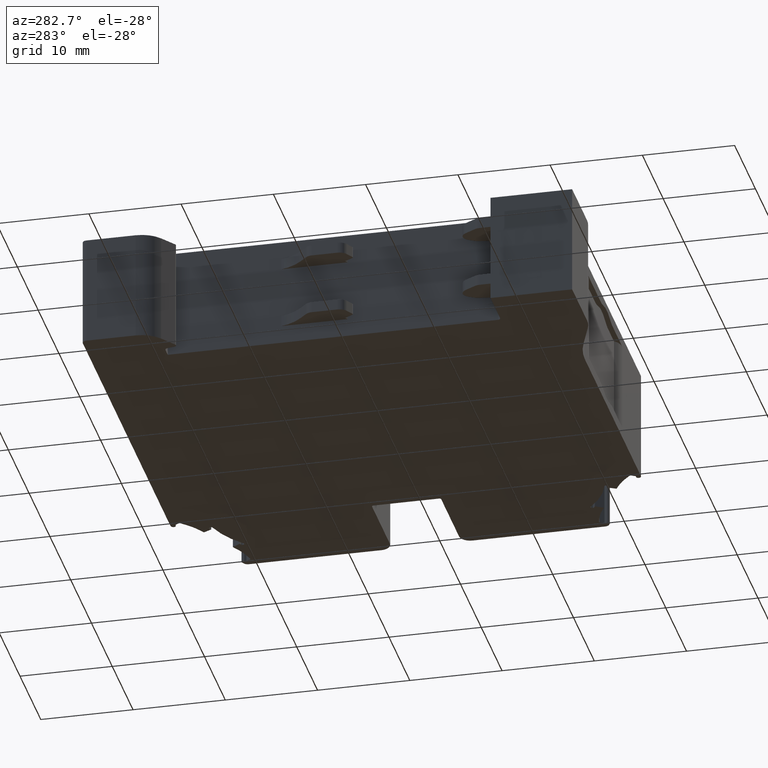
[diagram: clean part render]
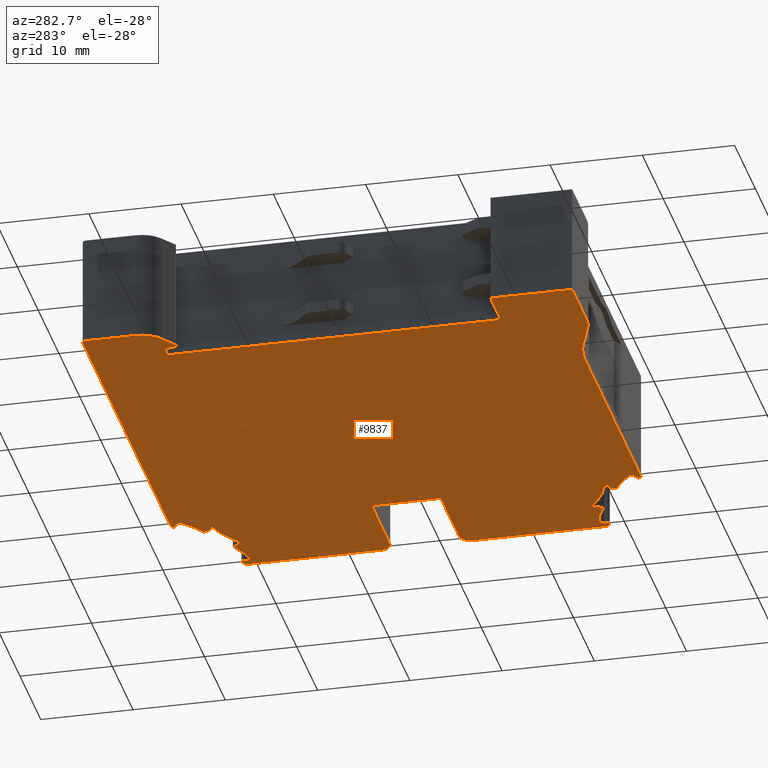
[diagram: same view with one face highlighted and labeled with its STEP entity id]
A machine part, auxiliary view. The second image highlights one B-rep face of the part: STEP entity #9837.
In plain terms, the highlighted planar face has unit normal (-0, 0, -1).
Its self-contained STEP definition (entity closure, byte-faithful):
#20 = DIRECTION ( 'NONE',  ( -0.8660281029035741263, -0.4999953249593804827, 0.000000000000000000 ) ) ;
#25 = DIRECTION ( 'NONE',  ( -0.1737351373877148442, -0.9847924157084435581, -1.851064442343834390E-14 ) ) ;
#33 = ORIENTED_EDGE ( 'NONE', *, *, #13090, .T. ) ;
#67 = CARTESIAN_POINT ( 'NONE',  ( 561.8719053672530208, -31.68192348020464166, -63.46407265014235577 ) ) ;
#80 = AXIS2_PLACEMENT_3D ( 'NONE', #10157, #6100, #16772 ) ;
#120 = VERTEX_POINT ( 'NONE', #1875 ) ;
#126 = ORIENTED_EDGE ( 'NONE', *, *, #8556, .T. ) ;
#148 = VECTOR ( 'NONE', #5958, 1000.000000000000227 ) ;
#168 = VERTEX_POINT ( 'NONE', #10503 ) ;
#180 = ORIENTED_EDGE ( 'NONE', *, *, #17756, .T. ) ;
#187 = VECTOR ( 'NONE', #13740, 1000.000000000000114 ) ;
#188 = DIRECTION ( 'NONE',  ( 0.000000000000000000, 1.000000000000000000, 0.000000000000000000 ) ) ;
#190 = ORIENTED_EDGE ( 'NONE', *, *, #10200, .T. ) ;
#198 = DIRECTION ( 'NONE',  ( -0.4999966573996220132, -0.8660273336270657429, 0.000000000000000000 ) ) ;
#217 = DIRECTION ( 'NONE',  ( 0.000000000000000000, 1.000000000000000000, 0.000000000000000000 ) ) ;
#221 = ORIENTED_EDGE ( 'NONE', *, *, #15176, .T. ) ;
#236 = VERTEX_POINT ( 'NONE', #12322 ) ;
#253 = CARTESIAN_POINT ( 'NONE',  ( 569.4671547242824090, -56.89747454266193216, -63.46407265014251919 ) ) ;
#281 = VERTEX_POINT ( 'NONE', #5015 ) ;
#285 = AXIS2_PLACEMENT_3D ( 'NONE', #11188, #16524, #16711 ) ;
#346 = EDGE_CURVE ( 'NONE', #17013, #9349, #1768, .T. ) ;
#389 = EDGE_CURVE ( 'NONE', #1082, #11814, #16365, .T. ) ;
#395 = CARTESIAN_POINT ( 'NONE',  ( 561.8719053672539303, -74.61305929558598393, -63.46407265014266130 ) ) ;
#423 = ORIENTED_EDGE ( 'NONE', *, *, #7732, .T. ) ;
#473 = ORIENTED_EDGE ( 'NONE', *, *, #9314, .T. ) ;
#483 = DIRECTION ( 'NONE',  ( 0.9999999999996291855, -8.611274224165934097E-07, 0.000000000000000000 ) ) ;
#511 = DIRECTION ( 'NONE',  ( -1.706662860027260251E-28, 6.982966722218760189E-15, -1.000000000000000000 ) ) ;
#518 = VECTOR ( 'NONE', #4364, 1000.000000000000114 ) ;
#639 = AXIS2_PLACEMENT_3D ( 'NONE', #12952, #14134, #7352 ) ;
#642 = VERTEX_POINT ( 'NONE', #15012 ) ;
#645 = VERTEX_POINT ( 'NONE', #7689 ) ;
#654 = VERTEX_POINT ( 'NONE', #6696 ) ;
#655 = EDGE_CURVE ( 'NONE', #3689, #3760, #10484, .T. ) ;
#659 = LINE ( 'NONE', #1844, #1272 ) ;
#716 = CARTESIAN_POINT ( 'NONE',  ( 566.0763336953314138, -71.92203973951025375, -63.46407265014263288 ) ) ;
#720 = CIRCLE ( 'NONE', #10783, 0.1500016548255100890 ) ;
#723 = LINE ( 'NONE', #6207, #14634 ) ;
#728 = CARTESIAN_POINT ( 'NONE',  ( 522.7674822807854298, -68.86420423064505769, -63.46407265014261867 ) ) ;
#741 = CARTESIAN_POINT ( 'NONE',  ( 560.3702414055205736, -78.64749090218452920, -63.46407265014268262 ) ) ;
#749 = CIRCLE ( 'NONE', #10813, 0.1499999932816631354 ) ;
#753 = AXIS2_PLACEMENT_3D ( 'NONE', #13647, #2743, #14002 ) ;
#759 = ORIENTED_EDGE ( 'NONE', *, *, #2971, .T. ) ;
#772 = DIRECTION ( 'NONE',  ( 1.706662860027260251E-28, -6.982966722218760189E-15, 1.000000000000000000 ) ) ;
#794 = VERTEX_POINT ( 'NONE', #4366 ) ;
#797 = VERTEX_POINT ( 'NONE', #8399 ) ;
#807 = VERTEX_POINT ( 'NONE', #16458 ) ;
#942 = CIRCLE ( 'NONE', #13310, 0.1499999932799700453 ) ;
#950 = VECTOR ( 'NONE', #6058, 999.9999999999998863 ) ;
#983 = VERTEX_POINT ( 'NONE', #17329 ) ;
#1015 = DIRECTION ( 'NONE',  ( 1.706662860027260251E-28, -6.982966722218760189E-15, 1.000000000000000000 ) ) ;
#1034 = LINE ( 'NONE', #14639, #9095 ) ;
#1043 = CIRCLE ( 'NONE', #753, 0.3122954085417600778 ) ;
#1048 = EDGE_CURVE ( 'NONE', #807, #14400, #5246, .T. ) ;
#1082 = VERTEX_POINT ( 'NONE', #1200 ) ;
#1089 = CARTESIAN_POINT ( 'NONE',  ( 562.1399904691000984, -30.49717210884261576, -63.46407265014234156 ) ) ;
#1113 = VECTOR ( 'NONE', #1732, 1000.000000000000000 ) ;
#1115 = DIRECTION ( 'NONE',  ( -0.8660242946938587760, 0.5000019209963140199, 0.000000000000000000 ) ) ;
#1118 = DIRECTION ( 'NONE',  ( 0.000000000000000000, 1.000000000000000000, 0.000000000000000000 ) ) ;
#1127 = VECTOR ( 'NONE', #5473, 1000.000000000000114 ) ;
#1151 = EDGE_CURVE ( 'NONE', #6265, #4979, #7489, .T. ) ;
#1159 = CARTESIAN_POINT ( 'NONE',  ( 569.8231645414397235, -72.72857196454502571, -63.46407265014264709 ) ) ;
#1166 = ORIENTED_EDGE ( 'NONE', *, *, #13320, .T. ) ;
#1189 = CARTESIAN_POINT ( 'NONE',  ( 522.7645257303951212, -68.86420423064505769, -63.46407265014261867 ) ) ;
#1200 = CARTESIAN_POINT ( 'NONE',  ( 561.9469082760608671, -31.55202135682349507, -63.46407265014235577 ) ) ;
#1210 = VECTOR ( 'NONE', #8599, 1000.000000000000114 ) ;
#1215 = CARTESIAN_POINT ( 'NONE',  ( 569.4671547242824090, -58.09747452346395136, -63.46407265014253340 ) ) ;
#1242 = CARTESIAN_POINT ( 'NONE',  ( 565.9862520434948010, -72.41078206804908746, -63.46407265014263288 ) ) ;
#1262 = EDGE_CURVE ( 'NONE', #9577, #168, #3439, .T. ) ;
#1272 = VECTOR ( 'NONE', #17081, 1000.000000000000000 ) ;
#1284 = AXIS2_PLACEMENT_3D ( 'NONE', #5305, #2782, #13509 ) ;
#1327 = AXIS2_PLACEMENT_3D ( 'NONE', #7451, #2068, #3514 ) ;
#1330 = VECTOR ( 'NONE', #12914, 1000.000000000000000 ) ;
#1344 = DIRECTION ( 'NONE',  ( 0.000000000000000000, 1.000000000000000000, 9.252195644141615147E-15 ) ) ;
#1345 = EDGE_CURVE ( 'NONE', #9161, #7465, #3345, .T. ) ;
#1371 = LINE ( 'NONE', #11179, #10250 ) ;
#1379 = VECTOR ( 'NONE', #1115, 1000.000000000000227 ) ;
#1384 = CARTESIAN_POINT ( 'NONE',  ( 561.7813948412482432, -31.91127693538050991, -63.46407265014235577 ) ) ;
#1439 = VERTEX_POINT ( 'NONE', #4038 ) ;
#1447 = ORIENTED_EDGE ( 'NONE', *, *, #7241, .T. ) ;
#1494 = EDGE_CURVE ( 'NONE', #642, #16756, #14947, .T. ) ;
#1507 = ORIENTED_EDGE ( 'NONE', *, *, #15130, .T. ) ;
#1513 = EDGE_CURVE ( 'NONE', #17212, #6682, #15297, .T. ) ;
#1530 = VERTEX_POINT ( 'NONE', #12592 ) ;
#1538 = ORIENTED_EDGE ( 'NONE', *, *, #15936, .T. ) ;
#1542 = VERTEX_POINT ( 'NONE', #253 ) ;
#1545 = AXIS2_PLACEMENT_3D ( 'NONE', #13903, #1559, #217 ) ;
#1546 = CARTESIAN_POINT ( 'NONE',  ( 566.2004923147610498, -72.28711497087449800, -63.46407265014263288 ) ) ;
#1559 = DIRECTION ( 'NONE',  ( -1.706662860027260251E-28, 6.982966722218760189E-15, -1.000000000000000000 ) ) ;
#1571 = CARTESIAN_POINT ( 'NONE',  ( 566.2062373498042689, -34.29794329986066970, -63.46407265014236998 ) ) ;
#1576 = CIRCLE ( 'NONE', #11634, 0.1499999932796300395 ) ;
#1660 = EDGE_CURVE ( 'NONE', #797, #15938, #12290, .T. ) ;
#1686 = AXIS2_PLACEMENT_3D ( 'NONE', #4739, #14289, #2037 ) ;
#1691 = CARTESIAN_POINT ( 'NONE',  ( 520.6839575659437287, -37.10685479651044716, -63.46407265014239130 ) ) ;
#1714 = CARTESIAN_POINT ( 'NONE',  ( 570.1671547108427376, -33.80367188685711710, -63.46407265014236998 ) ) ;
#1720 = EDGE_CURVE ( 'NONE', #1738, #4123, #8824, .T. ) ;
#1726 = VERTEX_POINT ( 'NONE', #17189 ) ;
#1732 = DIRECTION ( 'NONE',  ( -3.362296792049601850E-14, 1.000000000000000000, 7.144880683105404721E-15 ) ) ;
#1734 = CARTESIAN_POINT ( 'NONE',  ( 569.5046952913492078, -34.24573484975796589, -63.46407265014236998 ) ) ;
#1738 = VERTEX_POINT ( 'NONE', #4913 ) ;
#1764 = DIRECTION ( 'NONE',  ( 0.000000000000000000, 1.000000000000000000, 0.000000000000000000 ) ) ;
#1768 = LINE ( 'NONE', #3037, #17789 ) ;
#1769 = VERTEX_POINT ( 'NONE', #14461 ) ;
#1803 = CARTESIAN_POINT ( 'NONE',  ( 565.9862520434944599, -33.88420070774110116, -63.46407265014236998 ) ) ;
#1804 = EDGE_CURVE ( 'NONE', #6538, #1823, #12305, .T. ) ;
#1809 = DIRECTION ( 'NONE',  ( 0.000000000000000000, 1.000000000000000000, 0.000000000000000000 ) ) ;
#1823 = VERTEX_POINT ( 'NONE', #4020 ) ;
#1844 = CARTESIAN_POINT ( 'NONE',  ( 530.0855075410613608, -79.24441281374745927, -63.46407265014268262 ) ) ;
#1875 = CARTESIAN_POINT ( 'NONE',  ( 560.0658436432375993, -28.62726330374027484, -63.46407265014232735 ) ) ;
#1878 = DIRECTION ( 'NONE',  ( -1.706662860027260251E-28, 6.982966722218760189E-15, -1.000000000000000000 ) ) ;
#1911 = VECTOR ( 'NONE', #8394, 1000.000000000000114 ) ;
#1929 = LINE ( 'NONE', #7398, #950 ) ;
#1947 = DIRECTION ( 'NONE',  ( -1.706662860027260251E-28, 6.982966722218760189E-15, -1.000000000000000000 ) ) ;
#1957 = DIRECTION ( 'NONE',  ( 1.706662860027260251E-28, -6.982966722218760189E-15, 1.000000000000000000 ) ) ;
#1994 = DIRECTION ( 'NONE',  ( 0.8660281029088533478, -0.4999953249502364083, 0.000000000000000000 ) ) ;
#2022 = CARTESIAN_POINT ( 'NONE',  ( 570.6671547050843856, -58.09747452346395136, -63.46407265014253340 ) ) ;
#2025 = LINE ( 'NONE', #4983, #6460 ) ;
#2029 = CARTESIAN_POINT ( 'NONE',  ( 560.1957451522437168, -77.59271916353799270, -63.46407265014267551 ) ) ;
#2035 = FACE_OUTER_BOUND ( 'NONE', #8401, .T. ) ;
#2037 = DIRECTION ( 'NONE',  ( 0.000000000000000000, 1.000000000000000000, 0.000000000000000000 ) ) ;
#2040 = CARTESIAN_POINT ( 'NONE',  ( 522.7674822807842929, -35.84442360775773295, -63.46407265014238419 ) ) ;
#2068 = DIRECTION ( 'NONE',  ( 1.706662860027260251E-28, -6.982966722218760189E-15, 1.000000000000000000 ) ) ;
#2076 = DIRECTION ( 'NONE',  ( -1.000000000000000000, -5.567252192573311734E-14, 0.000000000000000000 ) ) ;
#2090 = DIRECTION ( 'NONE',  ( 1.706662860027260251E-28, -6.982966722218760189E-15, 1.000000000000000000 ) ) ;
#2105 = DIRECTION ( 'NONE',  ( -2.313955077234213448E-14, -1.000000000000000000, -6.749035641933122293E-15 ) ) ;
#2121 = CARTESIAN_POINT ( 'NONE',  ( 520.8560396413064382, -36.86110734822754864, -63.46407265014239130 ) ) ;
#2129 = VECTOR ( 'NONE', #9706, 1000.000000000000114 ) ;
#2147 = AXIS2_PLACEMENT_3D ( 'NONE', #13012, #3039, #15569 ) ;
#2169 = CARTESIAN_POINT ( 'NONE',  ( 570.1646566828833329, -33.22488120459399141, -63.46407265014236998 ) ) ;
#2180 = CARTESIAN_POINT ( 'NONE',  ( 517.7935084635490739, -80.79465791827048804, -63.46407265014269683 ) ) ;
#2206 = CARTESIAN_POINT ( 'NONE',  ( 570.1646566828832192, -73.07010157119663063, -63.46407265014264709 ) ) ;
#2253 = VECTOR ( 'NONE', #10298, 1000.000000000000000 ) ;
#2259 = CARTESIAN_POINT ( 'NONE',  ( 570.4171523704379752, -33.37065784039067751, -63.46407265014236998 ) ) ;
#2269 = VERTEX_POINT ( 'NONE', #17600 ) ;
#2387 = EDGE_CURVE ( 'NONE', #17340, #645, #5738, .T. ) ;
#2418 = DIRECTION ( 'NONE',  ( 0.5000206307942519635, 0.8660134922621692821, 0.000000000000000000 ) ) ;
#2419 = EDGE_CURVE ( 'NONE', #12702, #9666, #9128, .T. ) ;
#2531 = VECTOR ( 'NONE', #9316, 1000.000000000000000 ) ;
#2556 = CARTESIAN_POINT ( 'NONE',  ( 570.6671547050843856, -58.09747452346395136, -63.46407265014253340 ) ) ;
#2609 = EDGE_CURVE ( 'NONE', #4126, #1542, #8737, .T. ) ;
#2725 = DIRECTION ( 'NONE',  ( 1.706662860027260251E-28, -6.982966722218760189E-15, 1.000000000000000000 ) ) ;
#2743 = DIRECTION ( 'NONE',  ( 1.706662860027260251E-28, -6.982966722218760189E-15, 1.000000000000000000 ) ) ;
#2758 = CARTESIAN_POINT ( 'NONE',  ( 569.8231645414397235, -72.72857196454502571, -63.46407265014264709 ) ) ;
#2782 = DIRECTION ( 'NONE',  ( -1.706662860027260251E-28, 6.982966722218760189E-15, -1.000000000000000000 ) ) ;
#2797 = CARTESIAN_POINT ( 'NONE',  ( 560.6430337476881505, -78.56734460236029349, -63.46407265014268262 ) ) ;
#2798 = ORIENTED_EDGE ( 'NONE', *, *, #9933, .T. ) ;
#2875 = DIRECTION ( 'NONE',  ( 0.000000000000000000, 1.000000000000000000, 0.000000000000000000 ) ) ;
#2895 = VERTEX_POINT ( 'NONE', #16425 ) ;
#2926 = VECTOR ( 'NONE', #2105, 1000.000000000000000 ) ;
#2934 = VERTEX_POINT ( 'NONE', #2797 ) ;
#2938 = DIRECTION ( 'NONE',  ( 1.706662860027260251E-28, -6.982966722218760189E-15, 1.000000000000000000 ) ) ;
#2947 = DIRECTION ( 'NONE',  ( 1.706662860027260251E-28, -6.982966722218760189E-15, 1.000000000000000000 ) ) ;
#2971 = EDGE_CURVE ( 'NONE', #4484, #15395, #4673, .T. ) ;
#2982 = ORIENTED_EDGE ( 'NONE', *, *, #16546, .T. ) ;
#3015 = CIRCLE ( 'NONE', #9898, 9.999999811856202570 ) ;
#3037 = CARTESIAN_POINT ( 'NONE',  ( 567.0224943807828595, -72.97889453388137326, -63.46407265014264709 ) ) ;
#3039 = DIRECTION ( 'NONE',  ( -1.706662860027260475E-28, 6.982966722218760189E-15, -1.000000000000000000 ) ) ;
#3077 = CARTESIAN_POINT ( 'NONE',  ( 552.0431360607091165, -27.64748849852061596, -63.46407265014232735 ) ) ;
#3085 = CARTESIAN_POINT ( 'NONE',  ( 570.0396578521248330, -72.85359454630064135, -63.46407265014264709 ) ) ;
#3163 = CARTESIAN_POINT ( 'NONE',  ( 533.4540194484608264, -78.65045327963552779, -63.46407265014268262 ) ) ;
#3176 = EDGE_CURVE ( 'NONE', #6185, #3315, #9077, .T. ) ;
#3181 = ORIENTED_EDGE ( 'NONE', *, *, #17000, .T. ) ;
#3226 = EDGE_CURVE ( 'NONE', #17175, #281, #10128, .T. ) ;
#3275 = DIRECTION ( 'NONE',  ( -1.706662860027260251E-28, 6.982966722218760189E-15, -1.000000000000000000 ) ) ;
#3315 = VERTEX_POINT ( 'NONE', #4822 ) ;
#3345 = LINE ( 'NONE', #4522, #17808 ) ;
#3346 = LINE ( 'NONE', #17234, #6379 ) ;
#3369 = CARTESIAN_POINT ( 'NONE',  ( 560.3702414055205736, -78.14749090794406072, -63.46407265014267551 ) ) ;
#3374 = ORIENTED_EDGE ( 'NONE', *, *, #15114, .T. ) ;
#3390 = DIRECTION ( 'NONE',  ( 0.000000000000000000, 1.000000000000000000, 0.000000000000000000 ) ) ;
#3400 = CARTESIAN_POINT ( 'NONE',  ( 560.5866906129449490, -76.98969937433706434, -63.46407265014267551 ) ) ;
#3403 = CARTESIAN_POINT ( 'NONE',  ( 566.2554074486438367, -34.21277780639475452, -63.46407265014236998 ) ) ;
#3437 = CARTESIAN_POINT ( 'NONE',  ( 560.3702414055196641, -28.14749186784664303, -63.46407265014232735 ) ) ;
#3439 = LINE ( 'NONE', #14074, #8290 ) ;
#3465 = VERTEX_POINT ( 'NONE', #14928 ) ;
#3471 = DIRECTION ( 'NONE',  ( -0.9659156753051337807, -0.2588569261190966087, 0.000000000000000000 ) ) ;
#3514 = DIRECTION ( 'NONE',  ( 0.000000000000000000, 1.000000000000000000, 7.401487648237133248E-15 ) ) ;
#3547 = LINE ( 'NONE', #15631, #2253 ) ;
#3558 = EDGE_CURVE ( 'NONE', #7436, #120, #15196, .T. ) ;
#3566 = CARTESIAN_POINT ( 'NONE',  ( 560.6671548970647336, -49.59750822544972948, -63.46407265014247656 ) ) ;
#3637 = CIRCLE ( 'NONE', #13411, 0.1499999932796300395 ) ;
#3689 = VERTEX_POINT ( 'NONE', #11554 ) ;
#3694 = EDGE_CURVE ( 'NONE', #5636, #6622, #3547, .T. ) ;
#3717 = EDGE_CURVE ( 'NONE', #1530, #7486, #8273, .T. ) ;
#3751 = CARTESIAN_POINT ( 'NONE',  ( 517.7964640139779249, -74.63093544139645985, -63.46407265014266130 ) ) ;
#3760 = VERTEX_POINT ( 'NONE', #5346 ) ;
#3761 = EDGE_CURVE ( 'NONE', #4177, #4126, #14617, .T. ) ;
#3804 = VERTEX_POINT ( 'NONE', #3907 ) ;
#3907 = CARTESIAN_POINT ( 'NONE',  ( 560.3159145193496897, -78.10085493497095399, -63.46407265014267551 ) ) ;
#3918 = ORIENTED_EDGE ( 'NONE', *, *, #11022, .T. ) ;
#3942 = EDGE_CURVE ( 'NONE', #5030, #12072, #15912, .T. ) ;
#3976 = EDGE_CURVE ( 'NONE', #14692, #12146, #6679, .T. ) ;
#4020 = CARTESIAN_POINT ( 'NONE',  ( 517.7964640139779249, -74.63093544139645985, -63.46407265014266130 ) ) ;
#4038 = CARTESIAN_POINT ( 'NONE',  ( 562.1399904696373824, -75.79781066709244897, -63.46407265014266130 ) ) ;
#4039 = CARTESIAN_POINT ( 'NONE',  ( 560.6202390651146743, -27.71447782137997606, -63.46407265014232735 ) ) ;
#4051 = ORIENTED_EDGE ( 'NONE', *, *, #4758, .T. ) ;
#4085 = ORIENTED_EDGE ( 'NONE', *, *, #6056, .T. ) ;
#4105 = VERTEX_POINT ( 'NONE', #13224 ) ;
#4109 = EDGE_CURVE ( 'NONE', #6080, #6538, #15774, .T. ) ;
#4123 = VERTEX_POINT ( 'NONE', #6192 ) ;
#4126 = VERTEX_POINT ( 'NONE', #10602 ) ;
#4132 = EDGE_CURVE ( 'NONE', #7486, #1769, #6725, .T. ) ;
#4149 = VECTOR ( 'NONE', #16481, 1000.000000000000227 ) ;
#4159 = DIRECTION ( 'NONE',  ( 0.000000000000000000, 1.000000000000000000, 6.938894034458003939E-15 ) ) ;
#4177 = VERTEX_POINT ( 'NONE', #7997 ) ;
#4216 = ORIENTED_EDGE ( 'NONE', *, *, #3717, .T. ) ;
#4230 = VECTOR ( 'NONE', #7368, 1000.000000000000000 ) ;
#4231 = DIRECTION ( 'NONE',  ( -1.706662860027260251E-28, 6.982966722218760189E-15, -1.000000000000000000 ) ) ;
#4261 = CIRCLE ( 'NONE', #4545, 0.1499981612288481259 ) ;
#4269 = LINE ( 'NONE', #12553, #4426 ) ;
#4314 = ORIENTED_EDGE ( 'NONE', *, *, #2419, .T. ) ;
#4339 = ORIENTED_EDGE ( 'NONE', *, *, #389, .T. ) ;
#4341 = DIRECTION ( 'NONE',  ( -1.706662860027260251E-28, 6.982966722218760189E-15, -1.000000000000000000 ) ) ;
#4364 = DIRECTION ( 'NONE',  ( 0.7071459822521642957, -0.7070675779475549261, -1.974543855718506533E-14 ) ) ;
#4366 = CARTESIAN_POINT ( 'NONE',  ( 568.8313790241303423, -72.22969077795335124, -63.46407265014263288 ) ) ;
#4373 = VERTEX_POINT ( 'NONE', #12501 ) ;
#4412 = ORIENTED_EDGE ( 'NONE', *, *, #6369, .T. ) ;
#4417 = EDGE_CURVE ( 'NONE', #1823, #6832, #7783, .T. ) ;
#4426 = VECTOR ( 'NONE', #8304, 1000.000000000000000 ) ;
#4432 = VECTOR ( 'NONE', #10915, 999.9999999999998863 ) ;
#4468 = VERTEX_POINT ( 'NONE', #4916 ) ;
#4474 = DIRECTION ( 'NONE',  ( 0.000000000000000000, 1.000000000000000000, 0.000000000000000000 ) ) ;
#4484 = VERTEX_POINT ( 'NONE', #2040 ) ;
#4520 = DIRECTION ( 'NONE',  ( 1.000000000000000000, 0.000000000000000000, 0.000000000000000000 ) ) ;
#4522 = CARTESIAN_POINT ( 'NONE',  ( 570.6671547050831350, -33.80367188685711710, -63.46407265014236998 ) ) ;
#4545 = AXIS2_PLACEMENT_3D ( 'NONE', #2029, #8535, #8869 ) ;
#4556 = LINE ( 'NONE', #2022, #2926 ) ;
#4575 = AXIS2_PLACEMENT_3D ( 'NONE', #8821, #7453, #12962 ) ;
#4600 = CARTESIAN_POINT ( 'NONE',  ( 517.7935084635478233, -74.63093544139645985, -63.46407265014266130 ) ) ;
#4649 = DIRECTION ( 'NONE',  ( 0.000000000000000000, 1.000000000000000000, 0.000000000000000000 ) ) ;
#4673 = LINE ( 'NONE', #14135, #4697 ) ;
#4697 = VECTOR ( 'NONE', #7530, 1000.000000000000000 ) ;
#4698 = CARTESIAN_POINT ( 'NONE',  ( 560.6202390651146743, -27.71447782137997606, -63.46407265014232735 ) ) ;
#4714 = CARTESIAN_POINT ( 'NONE',  ( 520.6839575659437287, -37.10685479651044716, -63.46407265014239130 ) ) ;
#4724 = DIRECTION ( 'NONE',  ( 0.000000000000000000, 1.000000000000000000, 7.401487648134182167E-15 ) ) ;
#4739 = CARTESIAN_POINT ( 'NONE',  ( 569.5435153574464948, -34.10084351481184228, -63.46407265014236998 ) ) ;
#4758 = EDGE_CURVE ( 'NONE', #15938, #12415, #7314, .T. ) ;
#4822 = CARTESIAN_POINT ( 'NONE',  ( 569.9242399487155808, -33.74143638856545380, -63.46407265014236998 ) ) ;
#4868 = DIRECTION ( 'NONE',  ( 0.5373165686636824923, 0.8433806406596526806, 0.000000000000000000 ) ) ;
#4869 = DIRECTION ( 'NONE',  ( -0.4617207276975221486, -0.8870253489131360025, -1.372570196275769779E-14 ) ) ;
#4871 = DIRECTION ( 'NONE',  ( 0.8660686581013095076, -0.4999250738406675887, 0.000000000000000000 ) ) ;
#4886 = EDGE_CURVE ( 'NONE', #8665, #14545, #1929, .T. ) ;
#4913 = CARTESIAN_POINT ( 'NONE',  ( 517.7671847759843331, -28.14747249251279015, -63.46407265014232735 ) ) ;
#4916 = CARTESIAN_POINT ( 'NONE',  ( 566.2004923147557065, -34.00786780491382189, -63.46407265014236998 ) ) ;
#4937 = VERTEX_POINT ( 'NONE', #16363 ) ;
#4942 = ORIENTED_EDGE ( 'NONE', *, *, #5202, .T. ) ;
#4979 = VERTEX_POINT ( 'NONE', #1384 ) ;
#4983 = CARTESIAN_POINT ( 'NONE',  ( 569.5046902049986102, -72.04924928905619197, -63.46407265014263288 ) ) ;
#4994 = CIRCLE ( 'NONE', #17666, 0.3999777380405966642 ) ;
#5015 = CARTESIAN_POINT ( 'NONE',  ( 566.2062360311319935, -71.99703719194421581, -63.46407265014263288 ) ) ;
#5018 = DIRECTION ( 'NONE',  ( 1.706662860027260251E-28, -6.982966722218760189E-15, 1.000000000000000000 ) ) ;
#5030 = VERTEX_POINT ( 'NONE', #6768 ) ;
#5114 = CARTESIAN_POINT ( 'NONE',  ( 560.6430337476878094, -27.72763817343097870, -63.46407265014232735 ) ) ;
#5118 = DIRECTION ( 'NONE',  ( 1.000000000000000000, 0.000000000000000000, 0.000000000000000000 ) ) ;
#5153 = DIRECTION ( 'NONE',  ( 0.000000000000000000, 1.000000000000000000, 7.045370634794048357E-15 ) ) ;
#5168 = ORIENTED_EDGE ( 'NONE', *, *, #9282, .T. ) ;
#5198 = VERTEX_POINT ( 'NONE', #7654 ) ;
#5202 = EDGE_CURVE ( 'NONE', #3804, #5439, #8833, .T. ) ;
#5209 = CARTESIAN_POINT ( 'NONE',  ( 520.7670742828213406, -33.50281135122268239, -63.46407265014236998 ) ) ;
#5246 = LINE ( 'NONE', #16262, #15017 ) ;
#5265 = VERTEX_POINT ( 'NONE', #2180 ) ;
#5270 = DIRECTION ( 'NONE',  ( 1.000000000000000000, 3.475760800200415545E-11, 0.000000000000000000 ) ) ;
#5302 = EDGE_CURVE ( 'NONE', #9349, #642, #12974, .T. ) ;
#5305 = CARTESIAN_POINT ( 'NONE',  ( 560.5180349169320380, -78.35083757746345157, -63.46407265014267551 ) ) ;
#5324 = AXIS2_PLACEMENT_3D ( 'NONE', #5209, #8084, #1344 ) ;
#5337 = DIRECTION ( 'NONE',  ( 0.000000000000000000, 1.000000000000000000, 0.000000000000000000 ) ) ;
#5346 = CARTESIAN_POINT ( 'NONE',  ( 522.4522303218611796, -71.94594945984509593, -63.46407265014263288 ) ) ;
#5424 = CARTESIAN_POINT ( 'NONE',  ( 534.7117357780579141, -27.64748849852061596, -63.46407265014232735 ) ) ;
#5439 = VERTEX_POINT ( 'NONE', #11986 ) ;
#5473 = DIRECTION ( 'NONE',  ( 0.8660684287864305331, 0.4999254711048471411, 0.000000000000000000 ) ) ;
#5500 = CARTESIAN_POINT ( 'NONE',  ( 566.2004923147557065, -34.00786780491382189, -63.46407265014236998 ) ) ;
#5519 = VERTEX_POINT ( 'NONE', #13878 ) ;
#5529 = LINE ( 'NONE', #9676, #187 ) ;
#5530 = LINE ( 'NONE', #11109, #518 ) ;
#5545 = CIRCLE ( 'NONE', #7836, 4.928880694226117853 ) ;
#5553 = ORIENTED_EDGE ( 'NONE', *, *, #8367, .T. ) ;
#5563 = ORIENTED_EDGE ( 'NONE', *, *, #17018, .T. ) ;
#5636 = VERTEX_POINT ( 'NONE', #6531 ) ;
#5644 = DIRECTION ( 'NONE',  ( 1.706662860027260251E-28, -6.982966722218760189E-15, 1.000000000000000000 ) ) ;
#5650 = ORIENTED_EDGE ( 'NONE', *, *, #6378, .T. ) ;
#5656 = VERTEX_POINT ( 'NONE', #11434 ) ;
#5668 = DIRECTION ( 'NONE',  ( 1.706662860027260251E-28, -6.982966722218760189E-15, 1.000000000000000000 ) ) ;
#5670 = AXIS2_PLACEMENT_3D ( 'NONE', #8962, #511, #7597 ) ;
#5695 = DIRECTION ( 'NONE',  ( 0.000000000000000000, 1.000000000000000000, 0.000000000000000000 ) ) ;
#5698 = VECTOR ( 'NONE', #14772, 1000.000000000000114 ) ;
#5707 = ORIENTED_EDGE ( 'NONE', *, *, #17765, .T. ) ;
#5715 = DIRECTION ( 'NONE',  ( 0.5000000003162266005, -0.8660254036018651957, 0.000000000000000000 ) ) ;
#5738 = CIRCLE ( 'NONE', #285, 0.2499999990399452698 ) ;
#5743 = CARTESIAN_POINT ( 'NONE',  ( 524.9571449728298376, -75.86577722404091162, -63.46407265014266130 ) ) ;
#5752 = ORIENTED_EDGE ( 'NONE', *, *, #14387, .T. ) ;
#5758 = CARTESIAN_POINT ( 'NONE',  ( 559.0252624372736818, -41.52396284561837803, -63.46407265014241972 ) ) ;
#5791 = AXIS2_PLACEMENT_3D ( 'NONE', #13985, #2725, #5695 ) ;
#5795 = LINE ( 'NONE', #11014, #11100 ) ;
#5806 = ORIENTED_EDGE ( 'NONE', *, *, #9915, .T. ) ;
#5909 = DIRECTION ( 'NONE',  ( 1.706662860027260251E-28, -6.982966722218760189E-15, 1.000000000000000000 ) ) ;
#5958 = DIRECTION ( 'NONE',  ( -0.5373165686644054695, 0.8433806406591919380, 1.372569892591402075E-14 ) ) ;
#5959 = CIRCLE ( 'NONE', #10551, 0.1499999932812051684 ) ;
#5966 = CARTESIAN_POINT ( 'NONE',  ( 518.2671712074899233, -27.64748799854051242, -63.46407265014232735 ) ) ;
#5994 = PLANE ( 'NONE',  #2147 ) ;
#5998 = CIRCLE ( 'NONE', #7141, 9.999999811856508103 ) ;
#6056 = EDGE_CURVE ( 'NONE', #794, #17013, #13336, .T. ) ;
#6058 = DIRECTION ( 'NONE',  ( 0.4999966575631326626, -0.8660273335326637012, 0.000000000000000000 ) ) ;
#6080 = VERTEX_POINT ( 'NONE', #14445 ) ;
#6100 = DIRECTION ( 'NONE',  ( 1.706662860027260251E-28, -6.982966722218760189E-15, 1.000000000000000000 ) ) ;
#6129 = DIRECTION ( 'NONE',  ( 0.4617207276975011654, -0.8870253489131467717, 0.000000000000000000 ) ) ;
#6177 = CARTESIAN_POINT ( 'NONE',  ( 566.0763336953054932, -72.07203973280705611, -63.46407265014263288 ) ) ;
#6185 = VERTEX_POINT ( 'NONE', #13464 ) ;
#6192 = CARTESIAN_POINT ( 'NONE',  ( 518.2671712074899233, -27.64748799854051242, -63.46407265014232735 ) ) ;
#6207 = CARTESIAN_POINT ( 'NONE',  ( 517.7935084635478233, -74.63093544139645985, -63.46407265014266130 ) ) ;
#6228 = ORIENTED_EDGE ( 'NONE', *, *, #17535, .T. ) ;
#6245 = CARTESIAN_POINT ( 'NONE',  ( 569.5435153574733249, -72.04413760615241813, -63.46407265014263288 ) ) ;
#6265 = VERTEX_POINT ( 'NONE', #16179 ) ;
#6299 = LINE ( 'NONE', #7823, #5698 ) ;
#6369 = EDGE_CURVE ( 'NONE', #11073, #2269, #4269, .T. ) ;
#6371 = ORIENTED_EDGE ( 'NONE', *, *, #8788, .T. ) ;
#6378 = EDGE_CURVE ( 'NONE', #3465, #15776, #13045, .T. ) ;
#6379 = VECTOR ( 'NONE', #1994, 1000.000000000000227 ) ;
#6397 = CARTESIAN_POINT ( 'NONE',  ( 562.6281686652157532, -30.77896561153733401, -63.46407265014234156 ) ) ;
#6405 = DIRECTION ( 'NONE',  ( 1.706662860027260251E-28, -6.982966722218760189E-15, 1.000000000000000000 ) ) ;
#6433 = AXIS2_PLACEMENT_3D ( 'NONE', #17470, #5018, #10683 ) ;
#6460 = VECTOR ( 'NONE', #3471, 1000.000000000000000 ) ;
#6462 = CARTESIAN_POINT ( 'NONE',  ( 561.7420016440318022, -31.60692334234776979, -63.46407265014235577 ) ) ;
#6464 = ORIENTED_EDGE ( 'NONE', *, *, #14138, .T. ) ;
#6494 = VERTEX_POINT ( 'NONE', #4698 ) ;
#6495 = DIRECTION ( 'NONE',  ( 0.000000000000000000, 1.000000000000000000, 0.000000000000000000 ) ) ;
#6531 = CARTESIAN_POINT ( 'NONE',  ( 522.7645257303930748, -71.63365405130333841, -63.46407265014263288 ) ) ;
#6538 = VERTEX_POINT ( 'NONE', #7468 ) ;
#6557 = AXIS2_PLACEMENT_3D ( 'NONE', #13116, #772, #15923 ) ;
#6622 = VERTEX_POINT ( 'NONE', #1189 ) ;
#6679 = CIRCLE ( 'NONE', #639, 9.848869936861834873 ) ;
#6682 = VERTEX_POINT ( 'NONE', #7835 ) ;
#6690 = DIRECTION ( 'NONE',  ( 0.000000000000000000, 1.000000000000000000, 1.156482335819645830E-14 ) ) ;
#6696 = CARTESIAN_POINT ( 'NONE',  ( 562.6281686650434040, -75.51601716392083574, -63.46407265014266130 ) ) ;
#6708 = ORIENTED_EDGE ( 'NONE', *, *, #1513, .T. ) ;
#6725 = LINE ( 'NONE', #9446, #16488 ) ;
#6768 = CARTESIAN_POINT ( 'NONE',  ( 567.0225020603581925, -33.31609267547134579, -63.46407265014235577 ) ) ;
#6770 = AXIS2_PLACEMENT_3D ( 'NONE', #7837, #13254, #5153 ) ;
#6796 = ORIENTED_EDGE ( 'NONE', *, *, #3226, .T. ) ;
#6807 = CIRCLE ( 'NONE', #7667, 0.1999999923206555175 ) ;
#6832 = VERTEX_POINT ( 'NONE', #4600 ) ;
#6911 = CARTESIAN_POINT ( 'NONE',  ( 566.5295223983085862, -73.26350786623699207, -63.46407265014264709 ) ) ;
#6972 = ORIENTED_EDGE ( 'NONE', *, *, #1151, .T. ) ;
#7048 = DIRECTION ( 'NONE',  ( 0.4999983088965603839, 0.8660263801412632079, 0.000000000000000000 ) ) ;
#7131 = EDGE_CURVE ( 'NONE', #10145, #4373, #10583, .T. ) ;
#7141 = AXIS2_PLACEMENT_3D ( 'NONE', #10989, #4341, #4159 ) ;
#7175 = EDGE_CURVE ( 'NONE', #120, #15448, #14917, .T. ) ;
#7188 = VERTEX_POINT ( 'NONE', #14821 ) ;
#7192 = ORIENTED_EDGE ( 'NONE', *, *, #7934, .T. ) ;
#7208 = CARTESIAN_POINT ( 'NONE',  ( 560.8671548893855743, -56.89747454266198190, -63.46407265014253340 ) ) ;
#7228 = CARTESIAN_POINT ( 'NONE',  ( 560.3159145193488939, -28.19412784081991319, -63.46407265014232735 ) ) ;
#7237 = DIRECTION ( 'NONE',  ( 1.706662860027260251E-28, -6.982966722218760189E-15, 1.000000000000000000 ) ) ;
#7241 = EDGE_CURVE ( 'NONE', #1542, #16582, #10018, .T. ) ;
#7284 = CARTESIAN_POINT ( 'NONE',  ( 522.7645257303951212, -68.86420423064505769, -63.46407265014261867 ) ) ;
#7314 = LINE ( 'NONE', #4714, #1330 ) ;
#7352 = DIRECTION ( 'NONE',  ( 0.000000000000000000, 1.000000000000000000, 7.045370634794048357E-15 ) ) ;
#7365 = CARTESIAN_POINT ( 'NONE',  ( 562.6281686652157532, -30.77896561153733401, -63.46407265014234156 ) ) ;
#7368 = DIRECTION ( 'NONE',  ( -0.5000903289481969383, 0.8659732460604566695, 0.000000000000000000 ) ) ;
#7386 = CARTESIAN_POINT ( 'NONE',  ( 560.3159145193488939, -28.19412784081991319, -63.46407265014232735 ) ) ;
#7398 = CARTESIAN_POINT ( 'NONE',  ( 561.6928330610946887, -74.60289619056202071, -63.46407265014266130 ) ) ;
#7436 = VERTEX_POINT ( 'NONE', #7386 ) ;
#7451 = CARTESIAN_POINT ( 'NONE',  ( 565.8899900554951046, -82.29300047816293784, -63.46407265014269683 ) ) ;
#7453 = DIRECTION ( 'NONE',  ( 1.706662860027260251E-28, -6.982966722218760189E-15, 1.000000000000000000 ) ) ;
#7465 = VERTEX_POINT ( 'NONE', #14433 ) ;
#7468 = CARTESIAN_POINT ( 'NONE',  ( 517.7964640139779249, -77.54804421322020858, -63.46407265014267551 ) ) ;
#7486 = VERTEX_POINT ( 'NONE', #741 ) ;
#7489 = CIRCLE ( 'NONE', #5791, 0.1499999933002107988 ) ;
#7530 = DIRECTION ( 'NONE',  ( -1.000000000000000000, -1.906550311269090997E-14, 0.000000000000000000 ) ) ;
#7597 = DIRECTION ( 'NONE',  ( 0.000000000000000000, 1.000000000000000000, 0.000000000000000000 ) ) ;
#7599 = CIRCLE ( 'NONE', #5324, 2.999890694400028757 ) ;
#7645 = DIRECTION ( 'NONE',  ( -0.8660686574543323690, -0.4999250749614888023, 0.000000000000000000 ) ) ;
#7654 = CARTESIAN_POINT ( 'NONE',  ( 570.6671547050841582, -72.49131088893263097, -63.46407265014263288 ) ) ;
#7667 = AXIS2_PLACEMENT_3D ( 'NONE', #7840, #10906, #5337 ) ;
#7689 = CARTESIAN_POINT ( 'NONE',  ( 560.5180134477093361, -28.19414519644533357, -63.46407265014232735 ) ) ;
#7700 = DIRECTION ( 'NONE',  ( 0.000000000000000000, 1.000000000000000000, 0.000000000000000000 ) ) ;
#7732 = EDGE_CURVE ( 'NONE', #14400, #8238, #17772, .T. ) ;
#7755 = ORIENTED_EDGE ( 'NONE', *, *, #13691, .T. ) ;
#7771 = EDGE_CURVE ( 'NONE', #10672, #1726, #5998, .T. ) ;
#7783 = LINE ( 'NONE', #3751, #13948 ) ;
#7823 = CARTESIAN_POINT ( 'NONE',  ( 517.7671833384309821, -33.50281135122268239, -63.46407265014236998 ) ) ;
#7835 = CARTESIAN_POINT ( 'NONE',  ( 562.1613319013911223, -74.61916324698906067, -63.46407265014266130 ) ) ;
#7836 = AXIS2_PLACEMENT_3D ( 'NONE', #5743, #17738, #10491 ) ;
#7837 = CARTESIAN_POINT ( 'NONE',  ( 533.4540194484608264, -88.49932321649737332, -63.46407265014275367 ) ) ;
#7840 = CARTESIAN_POINT ( 'NONE',  ( 560.8671548893855743, -49.59750822544967974, -63.46407265014247656 ) ) ;
#7856 = CARTESIAN_POINT ( 'NONE',  ( 570.7723103555742910, -79.47418974997926000, -63.46407265014268262 ) ) ;
#7861 = EDGE_CURVE ( 'NONE', #15313, #4105, #12789, .T. ) ;
#7871 = DIRECTION ( 'NONE',  ( -3.127403634952202239E-14, -1.000000000000000000, -7.818509087380505599E-15 ) ) ;
#7934 = EDGE_CURVE ( 'NONE', #12687, #16487, #10594, .T. ) ;
#7941 = EDGE_CURVE ( 'NONE', #6832, #3689, #723, .T. ) ;
#7947 = CARTESIAN_POINT ( 'NONE',  ( 560.8671548893855743, -56.69747455034097783, -63.46407265014253340 ) ) ;
#7973 = AXIS2_PLACEMENT_3D ( 'NONE', #3085, #8476, #13629 ) ;
#7977 = ORIENTED_EDGE ( 'NONE', *, *, #17503, .T. ) ;
#7997 = CARTESIAN_POINT ( 'NONE',  ( 560.6671548970645063, -56.69747455034097783, -63.46407265014253340 ) ) ;
#8013 = CARTESIAN_POINT ( 'NONE',  ( 562.6281686650434040, -75.51601716392083574, -63.46407265014266130 ) ) ;
#8084 = DIRECTION ( 'NONE',  ( -1.706662860027260251E-28, 6.982966722218760189E-15, -1.000000000000000000 ) ) ;
#8112 = CARTESIAN_POINT ( 'NONE',  ( 521.6756316441302488, -36.24440134579850792, -63.46407265014238419 ) ) ;
#8115 = DIRECTION ( 'NONE',  ( 1.706662860027260251E-28, -6.982966722218760189E-15, 1.000000000000000000 ) ) ;
#8164 = ORIENTED_EDGE ( 'NONE', *, *, #8514, .T. ) ;
#8172 = ORIENTED_EDGE ( 'NONE', *, *, #7941, .T. ) ;
#8213 = CIRCLE ( 'NONE', #1327, 7.499999171717772306 ) ;
#8229 = ORIENTED_EDGE ( 'NONE', *, *, #3761, .T. ) ;
#8238 = VERTEX_POINT ( 'NONE', #13106 ) ;
#8242 = EDGE_CURVE ( 'NONE', #2269, #5519, #4261, .T. ) ;
#8273 = CIRCLE ( 'NONE', #14042, 0.4999999942406629927 ) ;
#8290 = VECTOR ( 'NONE', #2076, 1000.000000000000000 ) ;
#8298 = VECTOR ( 'NONE', #2418, 1000.000000000000114 ) ;
#8304 = DIRECTION ( 'NONE',  ( -0.7071459820633503313, -0.7070675781363898738, 0.000000000000000000 ) ) ;
#8305 = EDGE_CURVE ( 'NONE', #7465, #9577, #10003, .T. ) ;
#8322 = ORIENTED_EDGE ( 'NONE', *, *, #4109, .T. ) ;
#8323 = ORIENTED_EDGE ( 'NONE', *, *, #9121, .T. ) ;
#8367 = EDGE_CURVE ( 'NONE', #5265, #6080, #17442, .T. ) ;
#8394 = DIRECTION ( 'NONE',  ( 0.9659156754137344647, -0.2588569257138566559, 0.000000000000000000 ) ) ;
#8399 = CARTESIAN_POINT ( 'NONE',  ( 521.1514840116495861, -36.91322906185456532, -63.46407265014239130 ) ) ;
#8400 = VECTOR ( 'NONE', #5118, 1000.000000000000000 ) ;
#8401 = EDGE_LOOP ( 'NONE', ( #16668, #6228, #17226, #15834, #11586, #15129, #16504, #5553, #8322, #11298, #16973, #8172, #14161, #3374, #17497, #8323, #16389, #759, #6371, #14122, #10444, #4051, #11616, #5563, #11008, #10209, #10724, #423, #14423, #7977, #13125, #5707, #13160, #15199, #8164, #12995, #10667, #17015, #2982, #4339, #1166, #6972, #11050, #11941, #473, #126, #1538, #11819, #14351, #10655, #15737, #6464, #12106, #17027, #10509, #14780, #5650, #190, #15494, #9214, #13611, #9587, #5752, #2798, #8229, #14120, #1447, #14839, #5168, #12247, #4314, #10754, #17336, #5806, #7192, #14938, #4085, #17794, #9498, #8509, #7755, #6796, #180, #3918, #9035, #16187, #13719, #221, #6708, #33, #3181, #12646, #4412, #10393, #1507, #4942, #13339, #16763, #4216 ) ) ;
#8428 = DIRECTION ( 'NONE',  ( 0.000000000000000000, 1.000000000000000000, 0.000000000000000000 ) ) ;
#8444 = CARTESIAN_POINT ( 'NONE',  ( 566.0763336953045837, -34.22294304298337408, -63.46407265014236998 ) ) ;
#8476 = DIRECTION ( 'NONE',  ( -1.706662860027260251E-28, 6.982966722218760189E-15, -1.000000000000000000 ) ) ;
#8488 = LINE ( 'NONE', #11283, #1911 ) ;
#8509 = ORIENTED_EDGE ( 'NONE', *, *, #1494, .T. ) ;
#8514 = EDGE_CURVE ( 'NONE', #15448, #14195, #5530, .T. ) ;
#8535 = DIRECTION ( 'NONE',  ( 1.706662860027260251E-28, -6.982966722218760189E-15, 1.000000000000000000 ) ) ;
#8556 = EDGE_CURVE ( 'NONE', #10897, #12309, #11287, .T. ) ;
#8559 = DIRECTION ( 'NONE',  ( 4.548423476145173909E-13, 1.000000000000000000, 1.033732608214812209E-14 ) ) ;
#8599 = DIRECTION ( 'NONE',  ( 0.5000903289491799297, 0.8659732460598890125, 0.000000000000000000 ) ) ;
#8604 = CARTESIAN_POINT ( 'NONE',  ( 566.1255034974471982, -72.15720471237902700, -63.46407265014263288 ) ) ;
#8656 = CARTESIAN_POINT ( 'NONE',  ( 562.1613319013911223, -74.61916324698906067, -63.46407265014266130 ) ) ;
#8661 = DIRECTION ( 'NONE',  ( 0.000000000000000000, 1.000000000000000000, 0.000000000000000000 ) ) ;
#8665 = VERTEX_POINT ( 'NONE', #12907 ) ;
#8721 = CIRCLE ( 'NONE', #6433, 0.1500016549051130799 ) ;
#8737 = LINE ( 'NONE', #7208, #9999 ) ;
#8788 = EDGE_CURVE ( 'NONE', #15395, #15635, #4994, .T. ) ;
#8794 = CARTESIAN_POINT ( 'NONE',  ( 560.6430337476881505, -78.56734460236029349, -63.46407265014268262 ) ) ;
#8802 = AXIS2_PLACEMENT_3D ( 'NONE', #11836, #13276, #4724 ) ;
#8821 = CARTESIAN_POINT ( 'NONE',  ( 569.5435153574475180, -72.19413926097792000, -63.46407265014263288 ) ) ;
#8824 = CIRCLE ( 'NONE', #5670, 0.4999864315055023711 ) ;
#8833 = LINE ( 'NONE', #9104, #17640 ) ;
#8848 = CARTESIAN_POINT ( 'NONE',  ( 569.5046902049986102, -72.04924928905619197, -63.46407265014263288 ) ) ;
#8869 = DIRECTION ( 'NONE',  ( 0.000000000000000000, 1.000000000000000000, 0.000000000000000000 ) ) ;
#8912 = VERTEX_POINT ( 'NONE', #14072 ) ;
#8953 = CARTESIAN_POINT ( 'NONE',  ( 566.2554074486475884, -72.08220496939962629, -63.46407265014263288 ) ) ;
#8962 = CARTESIAN_POINT ( 'NONE',  ( 518.2671712074899233, -28.14747249251287542, -63.46407265014232735 ) ) ;
#9031 = CIRCLE ( 'NONE', #10465, 0.4999999942404617648 ) ;
#9035 = ORIENTED_EDGE ( 'NONE', *, *, #7771, .T. ) ;
#9047 = CARTESIAN_POINT ( 'NONE',  ( 569.4671547242824090, -48.19750825232681990, -63.46407265014246235 ) ) ;
#9053 = CIRCLE ( 'NONE', #1284, 0.2499999990402818062 ) ;
#9061 = VECTOR ( 'NONE', #7871, 1000.000000000000000 ) ;
#9077 = LINE ( 'NONE', #9251, #8298 ) ;
#9095 = VECTOR ( 'NONE', #13279, 1000.000000000000000 ) ;
#9104 = CARTESIAN_POINT ( 'NONE',  ( 560.3159145193496897, -78.10085493497095399, -63.46407265014267551 ) ) ;
#9106 = EDGE_CURVE ( 'NONE', #8238, #6494, #9031, .T. ) ;
#9121 = EDGE_CURVE ( 'NONE', #6622, #14383, #14504, .T. ) ;
#9128 = CIRCLE ( 'NONE', #7973, 0.2499999990405316064 ) ;
#9143 = AXIS2_PLACEMENT_3D ( 'NONE', #67, #5644, #13761 ) ;
#9161 = VERTEX_POINT ( 'NONE', #9461 ) ;
#9214 = ORIENTED_EDGE ( 'NONE', *, *, #1345, .T. ) ;
#9251 = CARTESIAN_POINT ( 'NONE',  ( 569.6734195802005161, -34.17584611066654787, -63.46407265014236998 ) ) ;
#9282 = EDGE_CURVE ( 'NONE', #5198, #5656, #9336, .T. ) ;
#9296 = CARTESIAN_POINT ( 'NONE',  ( 560.5180134477093361, -28.19414519644533357, -63.46407265014232735 ) ) ;
#9314 = EDGE_CURVE ( 'NONE', #17436, #10897, #1576, .T. ) ;
#9316 = DIRECTION ( 'NONE',  ( 0.000000000000000000, 1.000000000000000000, 0.000000000000000000 ) ) ;
#9336 = CIRCLE ( 'NONE', #17679, 0.4999999942403299258 ) ;
#9349 = VERTEX_POINT ( 'NONE', #6911 ) ;
#9367 = LINE ( 'NONE', #8013, #17796 ) ;
#9380 = EDGE_CURVE ( 'NONE', #4979, #13746, #3015, .T. ) ;
#9387 = CARTESIAN_POINT ( 'NONE',  ( 521.6756316441302488, -35.84442360775791059, -63.46407265014238419 ) ) ;
#9418 = DIRECTION ( 'NONE',  ( 0.000000000000000000, 1.000000000000000000, 4.757377558855376684E-15 ) ) ;
#9436 = VECTOR ( 'NONE', #12572, 1000.000000000000114 ) ;
#9446 = CARTESIAN_POINT ( 'NONE',  ( 560.3702414055205736, -78.64749090218452920, -63.46407265014268262 ) ) ;
#9461 = CARTESIAN_POINT ( 'NONE',  ( 570.6671547050831350, -33.80367188685711710, -63.46407265014236998 ) ) ;
#9498 = ORIENTED_EDGE ( 'NONE', *, *, #5302, .T. ) ;
#9563 = DIRECTION ( 'NONE',  ( -0.8660281029085952209, -0.4999953249506836062, 0.000000000000000000 ) ) ;
#9577 = VERTEX_POINT ( 'NONE', #17371 ) ;
#9587 = ORIENTED_EDGE ( 'NONE', *, *, #1262, .T. ) ;
#9611 = CIRCLE ( 'NONE', #10460, 0.1499999932968038019 ) ;
#9666 = VERTEX_POINT ( 'NONE', #1159 ) ;
#9676 = CARTESIAN_POINT ( 'NONE',  ( 566.5295223982941479, -33.03147490957370991, -63.46407265014236998 ) ) ;
#9697 = CARTESIAN_POINT ( 'NONE',  ( 565.9721306744586400, -34.33083988459821256, -63.46407265014236998 ) ) ;
#9706 = DIRECTION ( 'NONE',  ( -0.5000206311706101303, 0.8660134920448667728, 2.766631121354384745E-14 ) ) ;
#9725 = DIRECTION ( 'NONE',  ( 0.000000000000000000, 1.000000000000000000, 6.938894034458215353E-15 ) ) ;
#9784 = CARTESIAN_POINT ( 'NONE',  ( 566.0763336953045837, -34.22294304298337408, -63.46407265014236998 ) ) ;
#9791 = CARTESIAN_POINT ( 'NONE',  ( 533.6569041621251017, -78.64749090218514027, -63.46407265014268262 ) ) ;
#9822 = CARTESIAN_POINT ( 'NONE',  ( 561.7420016440318022, -31.60692334234776979, -63.46407265014235577 ) ) ;
#9837 = ADVANCED_FACE ( 'NONE', ( #2035 ), #5994, .T. ) ;
#9867 = DIRECTION ( 'NONE',  ( 0.000000000000000000, 1.000000000000000000, 0.000000000000000000 ) ) ;
#9874 = DIRECTION ( 'NONE',  ( 0.8660242946508217576, 0.5000019210708561701, 0.000000000000000000 ) ) ;
#9898 = AXIS2_PLACEMENT_3D ( 'NONE', #5758, #4231, #9725 ) ;
#9915 = EDGE_CURVE ( 'NONE', #13436, #12687, #720, .T. ) ;
#9933 = EDGE_CURVE ( 'NONE', #10121, #4177, #11933, .T. ) ;
#9999 = VECTOR ( 'NONE', #14249, 1000.000000000000000 ) ;
#10003 = CIRCLE ( 'NONE', #13459, 1.199999980801710997 ) ;
#10018 = CIRCLE ( 'NONE', #11172, 1.199999980802016086 ) ;
#10032 = LINE ( 'NONE', #5966, #11963 ) ;
#10121 = VERTEX_POINT ( 'NONE', #16792 ) ;
#10128 = LINE ( 'NONE', #8953, #11189 ) ;
#10145 = VERTEX_POINT ( 'NONE', #1734 ) ;
#10147 = LINE ( 'NONE', #5500, #16022 ) ;
#10152 = DIRECTION ( 'NONE',  ( 0.000000000000000000, 1.000000000000000000, 0.000000000000000000 ) ) ;
#10157 = CARTESIAN_POINT ( 'NONE',  ( 570.7723103555732678, -26.82079302581091795, -63.46407265014231314 ) ) ;
#10200 = EDGE_CURVE ( 'NONE', #15776, #14877, #3346, .T. ) ;
#10209 = ORIENTED_EDGE ( 'NONE', *, *, #15192, .T. ) ;
#10223 = VECTOR ( 'NONE', #4868, 1000.000000000000114 ) ;
#10250 = VECTOR ( 'NONE', #25, 1000.000000000000000 ) ;
#10298 = DIRECTION ( 'NONE',  ( 7.215878870303096929E-13, 1.000000000000000000, 5.011026993266039797E-15 ) ) ;
#10304 = CIRCLE ( 'NONE', #16386, 0.4999999942403229869 ) ;
#10393 = ORIENTED_EDGE ( 'NONE', *, *, #8242, .T. ) ;
#10444 = ORIENTED_EDGE ( 'NONE', *, *, #1660, .T. ) ;
#10448 = CARTESIAN_POINT ( 'NONE',  ( 526.6429214533681034, -80.49741004148002332, -63.46407265014268262 ) ) ;
#10460 = AXIS2_PLACEMENT_3D ( 'NONE', #16441, #8115, #1118 ) ;
#10464 = DIRECTION ( 'NONE',  ( 0.000000000000000000, 1.000000000000000000, 0.000000000000000000 ) ) ;
#10465 = AXIS2_PLACEMENT_3D ( 'NONE', #3437, #14415, #1809 ) ;
#10484 = LINE ( 'NONE', #17618, #13415 ) ;
#10491 = DIRECTION ( 'NONE',  ( 0.000000000000000000, 1.000000000000000000, 5.631212710858039821E-15 ) ) ;
#10503 = CARTESIAN_POINT ( 'NONE',  ( 560.8671548893855743, -49.39750823312902384, -63.46407265014247656 ) ) ;
#10509 = ORIENTED_EDGE ( 'NONE', *, *, #3176, .T. ) ;
#10521 = CIRCLE ( 'NONE', #8802, 7.499999171822095079 ) ;
#10551 = AXIS2_PLACEMENT_3D ( 'NONE', #14110, #11224, #4474 ) ;
#10583 = CIRCLE ( 'NONE', #1686, 0.1500016549051130799 ) ;
#10594 = CIRCLE ( 'NONE', #4575, 0.1500016548255100890 ) ;
#10602 = CARTESIAN_POINT ( 'NONE',  ( 560.8671548893855743, -56.89747454266198190, -63.46407265014253340 ) ) ;
#10655 = ORIENTED_EDGE ( 'NONE', *, *, #15115, .T. ) ;
#10667 = ORIENTED_EDGE ( 'NONE', *, *, #15771, .T. ) ;
#10672 = VERTEX_POINT ( 'NONE', #10685 ) ;
#10683 = DIRECTION ( 'NONE',  ( 0.000000000000000000, 1.000000000000000000, 0.000000000000000000 ) ) ;
#10685 = CARTESIAN_POINT ( 'NONE',  ( 565.9721306744551157, -71.96414289119360319, -63.46407265014264709 ) ) ;
#10687 = DIRECTION ( 'NONE',  ( -1.000000000000000000, -2.333212097892212570E-14, 0.000000000000000000 ) ) ;
#10724 = ORIENTED_EDGE ( 'NONE', *, *, #1048, .T. ) ;
#10754 = ORIENTED_EDGE ( 'NONE', *, *, #11239, .T. ) ;
#10783 = AXIS2_PLACEMENT_3D ( 'NONE', #15746, #5909, #3390 ) ;
#10813 = AXIS2_PLACEMENT_3D ( 'NONE', #8604, #7237, #1764 ) ;
#10831 = VECTOR ( 'NONE', #4871, 1000.000000000000227 ) ;
#10884 = VECTOR ( 'NONE', #4869, 1000.000000000000000 ) ;
#10892 = CARTESIAN_POINT ( 'NONE',  ( 566.2554074486475884, -72.08220496939962629, -63.46407265014263288 ) ) ;
#10897 = VERTEX_POINT ( 'NONE', #17826 ) ;
#10903 = LINE ( 'NONE', #9822, #12266 ) ;
#10906 = DIRECTION ( 'NONE',  ( 1.706662860027260251E-28, -6.982966722218760189E-15, 1.000000000000000000 ) ) ;
#10915 = DIRECTION ( 'NONE',  ( -0.9999999963125808522, 8.587687968593777060E-05, 0.000000000000000000 ) ) ;
#10938 = EDGE_CURVE ( 'NONE', #1726, #8665, #942, .T. ) ;
#10948 = EDGE_CURVE ( 'NONE', #13201, #14835, #5545, .T. ) ;
#10989 = CARTESIAN_POINT ( 'NONE',  ( 559.0252624372736818, -64.77101993017240034, -63.46407265014259025 ) ) ;
#11008 = ORIENTED_EDGE ( 'NONE', *, *, #1720, .T. ) ;
#11014 = CARTESIAN_POINT ( 'NONE',  ( 560.0658430643178463, -77.66771846969834314, -63.46407265014267551 ) ) ;
#11022 = EDGE_CURVE ( 'NONE', #11879, #10672, #15346, .T. ) ;
#11050 = ORIENTED_EDGE ( 'NONE', *, *, #9380, .T. ) ;
#11073 = VERTEX_POINT ( 'NONE', #3400 ) ;
#11083 = DIRECTION ( 'NONE',  ( 0.9999999999999179545, -4.053131754584585388E-07, 0.000000000000000000 ) ) ;
#11100 = VECTOR ( 'NONE', #5715, 1000.000000000000000 ) ;
#11109 = CARTESIAN_POINT ( 'NONE',  ( 560.0896835770367943, -28.80833147064000244, -63.46407265014232735 ) ) ;
#11172 = AXIS2_PLACEMENT_3D ( 'NONE', #1215, #16101, #6690 ) ;
#11179 = CARTESIAN_POINT ( 'NONE',  ( 521.2817366012558296, -36.17491115852750028, -63.46407265014238419 ) ) ;
#11188 = CARTESIAN_POINT ( 'NONE',  ( 560.5180349169311285, -27.94414519832725574, -63.46407265014232735 ) ) ;
#11189 = VECTOR ( 'NONE', #17086, 1000.000000000000114 ) ;
#11224 = DIRECTION ( 'NONE',  ( 1.706662860027260251E-28, -6.982966722218760189E-15, 1.000000000000000000 ) ) ;
#11239 = EDGE_CURVE ( 'NONE', #9666, #2895, #15109, .T. ) ;
#11283 = CARTESIAN_POINT ( 'NONE',  ( 568.8313790239473065, -34.06529199801716601, -63.46407265014236998 ) ) ;
#11287 = LINE ( 'NONE', #1571, #11618 ) ;
#11298 = ORIENTED_EDGE ( 'NONE', *, *, #1804, .T. ) ;
#11308 = DIRECTION ( 'NONE',  ( -0.8660285792345983058, -0.4999944999186521910, 0.000000000000000000 ) ) ;
#11384 = EDGE_CURVE ( 'NONE', #16582, #5198, #4556, .T. ) ;
#11419 = AXIS2_PLACEMENT_3D ( 'NONE', #2121, #1947, #4649 ) ;
#11434 = CARTESIAN_POINT ( 'NONE',  ( 570.4171523704383162, -72.92432493539959637, -63.46407265014264709 ) ) ;
#11446 = LINE ( 'NONE', #14241, #4230 ) ;
#11486 = EDGE_CURVE ( 'NONE', #12146, #13201, #659, .T. ) ;
#11554 = CARTESIAN_POINT ( 'NONE',  ( 517.7935084635490739, -71.94594946000607649, -63.46407265014263288 ) ) ;
#11586 = ORIENTED_EDGE ( 'NONE', *, *, #11486, .T. ) ;
#11616 = ORIENTED_EDGE ( 'NONE', *, *, #11912, .T. ) ;
#11618 = VECTOR ( 'NONE', #7048, 1000.000000000000227 ) ;
#11630 = CARTESIAN_POINT ( 'NONE',  ( 566.5295223983085862, -73.26350786623699207, -63.46407265014264709 ) ) ;
#11634 = AXIS2_PLACEMENT_3D ( 'NONE', #8444, #5668, #15051 ) ;
#11753 = VECTOR ( 'NONE', #11083, 999.9999999999998863 ) ;
#11773 = CARTESIAN_POINT ( 'NONE',  ( 569.6734229833698464, -72.11914255986638977, -63.46407265014263288 ) ) ;
#11814 = VERTEX_POINT ( 'NONE', #6462 ) ;
#11819 = ORIENTED_EDGE ( 'NONE', *, *, #13360, .T. ) ;
#11836 = CARTESIAN_POINT ( 'NONE',  ( 565.8899900554931719, -24.00198229762743907, -63.46407265014229893 ) ) ;
#11879 = VERTEX_POINT ( 'NONE', #716 ) ;
#11912 = EDGE_CURVE ( 'NONE', #12415, #8912, #7599, .T. ) ;
#11933 = LINE ( 'NONE', #3566, #9061 ) ;
#11941 = ORIENTED_EDGE ( 'NONE', *, *, #13679, .T. ) ;
#11963 = VECTOR ( 'NONE', #483, 1000.000000000000114 ) ;
#11972 = EDGE_CURVE ( 'NONE', #5439, #2934, #9053, .T. ) ;
#11986 = CARTESIAN_POINT ( 'NONE',  ( 560.5180134477112688, -78.10083757934502557, -63.46407265014267551 ) ) ;
#12047 = VECTOR ( 'NONE', #9874, 1000.000000000000114 ) ;
#12072 = VERTEX_POINT ( 'NONE', #12604 ) ;
#12106 = ORIENTED_EDGE ( 'NONE', *, *, #7131, .T. ) ;
#12146 = VERTEX_POINT ( 'NONE', #14041 ) ;
#12159 = CARTESIAN_POINT ( 'NONE',  ( 567.0224943807828595, -72.97889453388137326, -63.46407265014264709 ) ) ;
#12235 = CARTESIAN_POINT ( 'NONE',  ( 566.0763336953303906, -34.37294303626300263, -63.46407265014236998 ) ) ;
#12247 = ORIENTED_EDGE ( 'NONE', *, *, #16663, .T. ) ;
#12266 = VECTOR ( 'NONE', #198, 1000.000000000000114 ) ;
#12290 = CIRCLE ( 'NONE', #11419, 0.3000067482555601739 ) ;
#12305 = LINE ( 'NONE', #16383, #17199 ) ;
#12309 = VERTEX_POINT ( 'NONE', #3403 ) ;
#12322 = CARTESIAN_POINT ( 'NONE',  ( 533.6560459774202627, -78.65252554848278521, -63.46407265014268262 ) ) ;
#12328 = LINE ( 'NONE', #9791, #4149 ) ;
#12349 = DIRECTION ( 'NONE',  ( -1.706662860027260251E-28, 6.982966722218760189E-15, -1.000000000000000000 ) ) ;
#12362 = LINE ( 'NONE', #8794, #14266 ) ;
#12415 = VERTEX_POINT ( 'NONE', #17817 ) ;
#12495 = CARTESIAN_POINT ( 'NONE',  ( 561.9469061340089411, -74.74296265571281594, -63.46407265014266130 ) ) ;
#12501 = CARTESIAN_POINT ( 'NONE',  ( 569.5435153574723017, -34.25084516971696047, -63.46407265014236998 ) ) ;
#12553 = CARTESIAN_POINT ( 'NONE',  ( 560.5866906129449490, -76.98969937433706434, -63.46407265014267551 ) ) ;
#12572 = DIRECTION ( 'NONE',  ( -0.5000000000022156721, -0.8660254037831593976, 0.000000000000000000 ) ) ;
#12592 = CARTESIAN_POINT ( 'NONE',  ( 560.6202390651197902, -78.58050495440859606, -63.46407265014267551 ) ) ;
#12596 = VECTOR ( 'NONE', #9563, 1000.000000000000114 ) ;
#12604 = CARTESIAN_POINT ( 'NONE',  ( 568.8313790239473065, -34.06529199801716601, -63.46407265014236998 ) ) ;
#12605 = EDGE_CURVE ( 'NONE', #16487, #794, #2025, .T. ) ;
#12646 = ORIENTED_EDGE ( 'NONE', *, *, #14759, .T. ) ;
#12687 = VERTEX_POINT ( 'NONE', #6245 ) ;
#12702 = VERTEX_POINT ( 'NONE', #2206 ) ;
#12789 = LINE ( 'NONE', #7365, #10884 ) ;
#12806 = CIRCLE ( 'NONE', #6770, 9.848869936861834873 ) ;
#12866 = CARTESIAN_POINT ( 'NONE',  ( 561.9469061340089411, -74.74296265571281594, -63.46407265014266130 ) ) ;
#12907 = CARTESIAN_POINT ( 'NONE',  ( 561.6928330610946887, -74.60289619056202071, -63.46407265014266130 ) ) ;
#12914 = DIRECTION ( 'NONE',  ( -0.8191397350931153287, 0.5735940153031419131, 6.941762428745183977E-15 ) ) ;
#12952 = CARTESIAN_POINT ( 'NONE',  ( 533.4540194484608264, -88.49932321649737332, -63.46407265014275367 ) ) ;
#12962 = DIRECTION ( 'NONE',  ( 0.000000000000000000, 1.000000000000000000, 0.000000000000000000 ) ) ;
#12974 = LINE ( 'NONE', #11630, #148 ) ;
#12995 = ORIENTED_EDGE ( 'NONE', *, *, #13843, .T. ) ;
#13012 = CARTESIAN_POINT ( 'NONE',  ( 521.6756316441302488, -36.24440134579850792, -63.46407265014238419 ) ) ;
#13045 = CIRCLE ( 'NONE', #1545, 0.2499999990406356898 ) ;
#13090 = EDGE_CURVE ( 'NONE', #6682, #654, #17061, .T. ) ;
#13106 = CARTESIAN_POINT ( 'NONE',  ( 560.3702414055196641, -27.64749187360618166, -63.46407265014232735 ) ) ;
#13116 = CARTESIAN_POINT ( 'NONE',  ( 560.1957451522426936, -28.70226361225277500, -63.46407265014232735 ) ) ;
#13125 = ORIENTED_EDGE ( 'NONE', *, *, #2387, .T. ) ;
#13127 = AXIS2_PLACEMENT_3D ( 'NONE', #395, #2090, #8661 ) ;
#13150 = LINE ( 'NONE', #1803, #10223 ) ;
#13160 = ORIENTED_EDGE ( 'NONE', *, *, #3558, .T. ) ;
#13197 = DIRECTION ( 'NONE',  ( -1.706662860027260251E-28, 6.982966722218760189E-15, -1.000000000000000000 ) ) ;
#13201 = VERTEX_POINT ( 'NONE', #10448 ) ;
#13213 = EDGE_CURVE ( 'NONE', #236, #14692, #12806, .T. ) ;
#13224 = CARTESIAN_POINT ( 'NONE',  ( 562.1613319013954424, -31.67581952879198326, -63.46407265014235577 ) ) ;
#13254 = DIRECTION ( 'NONE',  ( 1.706662860027260251E-28, -6.982966722218760189E-15, 1.000000000000000000 ) ) ;
#13270 = DIRECTION ( 'NONE',  ( 1.706662860027260251E-28, -6.982966722218760189E-15, 1.000000000000000000 ) ) ;
#13276 = DIRECTION ( 'NONE',  ( 1.706662860027260251E-28, -6.982966722218760189E-15, 1.000000000000000000 ) ) ;
#13279 = DIRECTION ( 'NONE',  ( -1.000000000000000000, -7.361567494577868268E-14, 0.000000000000000000 ) ) ;
#13310 = AXIS2_PLACEMENT_3D ( 'NONE', #15300, #2947, #8428 ) ;
#13312 = CARTESIAN_POINT ( 'NONE',  ( 517.7935084635479370, -77.54804421322020858, -63.46407265014267551 ) ) ;
#13320 = EDGE_CURVE ( 'NONE', #11814, #6265, #10903, .T. ) ;
#13336 = CIRCLE ( 'NONE', #17382, 7.499998652604214833 ) ;
#13339 = ORIENTED_EDGE ( 'NONE', *, *, #11972, .T. ) ;
#13360 = EDGE_CURVE ( 'NONE', #4468, #4937, #10147, .T. ) ;
#13394 = EDGE_CURVE ( 'NONE', #2934, #1530, #12362, .T. ) ;
#13411 = AXIS2_PLACEMENT_3D ( 'NONE', #9784, #2938, #9867 ) ;
#13415 = VECTOR ( 'NONE', #5270, 1000.000000000000000 ) ;
#13425 = LINE ( 'NONE', #1089, #10831 ) ;
#13436 = VERTEX_POINT ( 'NONE', #11773 ) ;
#13459 = AXIS2_PLACEMENT_3D ( 'NONE', #9047, #13197, #17347 ) ;
#13464 = CARTESIAN_POINT ( 'NONE',  ( 569.6734195802005161, -34.17584611066654787, -63.46407265014236998 ) ) ;
#13509 = DIRECTION ( 'NONE',  ( 0.000000000000000000, 1.000000000000000000, 0.000000000000000000 ) ) ;
#13538 = CARTESIAN_POINT ( 'NONE',  ( 560.0896835770367943, -28.80833147064000244, -63.46407265014232735 ) ) ;
#13586 = DIRECTION ( 'NONE',  ( 0.8660281029073082504, -0.4999953249529126009, 0.000000000000000000 ) ) ;
#13611 = ORIENTED_EDGE ( 'NONE', *, *, #8305, .T. ) ;
#13629 = DIRECTION ( 'NONE',  ( 0.000000000000000000, 1.000000000000000000, 0.000000000000000000 ) ) ;
#13647 = CARTESIAN_POINT ( 'NONE',  ( 522.4522303218503794, -71.63365405130333841, -63.46407265014263288 ) ) ;
#13677 = LINE ( 'NONE', #15035, #2129 ) ;
#13679 = EDGE_CURVE ( 'NONE', #13746, #17436, #3637, .T. ) ;
#13691 = EDGE_CURVE ( 'NONE', #16756, #17175, #749, .T. ) ;
#13715 = CARTESIAN_POINT ( 'NONE',  ( 561.7420032929226181, -74.68806228936703917, -63.46407265014266130 ) ) ;
#13719 = ORIENTED_EDGE ( 'NONE', *, *, #4886, .T. ) ;
#13740 = DIRECTION ( 'NONE',  ( 0.8660285795461235558, -0.4999944993790667591, 0.000000000000000000 ) ) ;
#13746 = VERTEX_POINT ( 'NONE', #9697 ) ;
#13761 = DIRECTION ( 'NONE',  ( 0.000000000000000000, 1.000000000000000000, 0.000000000000000000 ) ) ;
#13843 = EDGE_CURVE ( 'NONE', #14195, #983, #10521, .T. ) ;
#13878 = CARTESIAN_POINT ( 'NONE',  ( 560.0658430643178463, -77.66771846969834314, -63.46407265014267551 ) ) ;
#13903 = CARTESIAN_POINT ( 'NONE',  ( 570.0396578521238098, -33.44138822948958989, -63.46407265014236998 ) ) ;
#13948 = VECTOR ( 'NONE', #14466, 1000.000000000000000 ) ;
#13984 = CARTESIAN_POINT ( 'NONE',  ( 570.4171523704383162, -72.92432493539959637, -63.46407265014264709 ) ) ;
#13985 = CARTESIAN_POINT ( 'NONE',  ( 561.8227368262340633, -31.76708665047080871, -63.46407265014235577 ) ) ;
#14002 = DIRECTION ( 'NONE',  ( 0.000000000000000000, 1.000000000000000000, 0.000000000000000000 ) ) ;
#14041 = CARTESIAN_POINT ( 'NONE',  ( 530.0855075410613608, -79.24441281374745927, -63.46407265014268262 ) ) ;
#14042 = AXIS2_PLACEMENT_3D ( 'NONE', #3369, #3275, #10464 ) ;
#14072 = CARTESIAN_POINT ( 'NONE',  ( 517.7671833384309821, -33.50281135122268239, -63.46407265014236998 ) ) ;
#14074 = CARTESIAN_POINT ( 'NONE',  ( 569.4671547242824090, -49.39750823312868278, -63.46407265014247656 ) ) ;
#14110 = CARTESIAN_POINT ( 'NONE',  ( 566.1255034974461751, -34.13777806341128240, -63.46407265014236998 ) ) ;
#14120 = ORIENTED_EDGE ( 'NONE', *, *, #2609, .T. ) ;
#14122 = ORIENTED_EDGE ( 'NONE', *, *, #15525, .T. ) ;
#14134 = DIRECTION ( 'NONE',  ( 1.706662860027260251E-28, -6.982966722218760189E-15, 1.000000000000000000 ) ) ;
#14135 = CARTESIAN_POINT ( 'NONE',  ( 522.7674822807842929, -35.84442360775773295, -63.46407265014238419 ) ) ;
#14138 = EDGE_CURVE ( 'NONE', #12072, #10145, #8488, .T. ) ;
#14149 = LINE ( 'NONE', #728, #1113 ) ;
#14161 = ORIENTED_EDGE ( 'NONE', *, *, #655, .T. ) ;
#14195 = VERTEX_POINT ( 'NONE', #15185 ) ;
#14209 = DIRECTION ( 'NONE',  ( -0.8660684287842191909, 0.4999254711086781322, 0.000000000000000000 ) ) ;
#14214 = VECTOR ( 'NONE', #13586, 1000.000000000000000 ) ;
#14241 = CARTESIAN_POINT ( 'NONE',  ( 569.9242399487155808, -33.74143638856545380, -63.46407265014236998 ) ) ;
#14249 = DIRECTION ( 'NONE',  ( 1.000000000000000000, 2.097805174013131994E-14, 0.000000000000000000 ) ) ;
#14253 = VECTOR ( 'NONE', #6129, 1000.000000000000114 ) ;
#14266 = VECTOR ( 'NONE', #20, 1000.000000000000114 ) ;
#14289 = DIRECTION ( 'NONE',  ( 1.706662860027260251E-28, -6.982966722218760189E-15, 1.000000000000000000 ) ) ;
#14332 = DIRECTION ( 'NONE',  ( 6.170546872624134584E-14, -1.000000000000000000, -6.749035641932647399E-15 ) ) ;
#14351 = ORIENTED_EDGE ( 'NONE', *, *, #14707, .T. ) ;
#14383 = VERTEX_POINT ( 'NONE', #14615 ) ;
#14387 = EDGE_CURVE ( 'NONE', #168, #10121, #6807, .T. ) ;
#14400 = VERTEX_POINT ( 'NONE', #5424 ) ;
#14415 = DIRECTION ( 'NONE',  ( -1.706662860027260251E-28, 6.982966722218760189E-15, -1.000000000000000000 ) ) ;
#14423 = ORIENTED_EDGE ( 'NONE', *, *, #9106, .T. ) ;
#14425 = DIRECTION ( 'NONE',  ( 0.9999999963125805191, 8.587688286137436884E-05, 0.000000000000000000 ) ) ;
#14433 = CARTESIAN_POINT ( 'NONE',  ( 570.6671547050841582, -48.19750825232680569, -63.46407265014246235 ) ) ;
#14445 = CARTESIAN_POINT ( 'NONE',  ( 517.7935084635479370, -77.54804421322020858, -63.46407265014267551 ) ) ;
#14461 = CARTESIAN_POINT ( 'NONE',  ( 533.6569041621251017, -78.64749090218514027, -63.46407265014268262 ) ) ;
#14466 = DIRECTION ( 'NONE',  ( -1.000000000000000000, 0.000000000000000000, 0.000000000000000000 ) ) ;
#14504 = LINE ( 'NONE', #7284, #17120 ) ;
#14545 = VERTEX_POINT ( 'NONE', #13715 ) ;
#14615 = CARTESIAN_POINT ( 'NONE',  ( 522.7674822807854298, -68.86420423064505769, -63.46407265014261867 ) ) ;
#14617 = CIRCLE ( 'NONE', #15210, 0.1999999923210094011 ) ;
#14634 = VECTOR ( 'NONE', #8559, 1000.000000000000000 ) ;
#14639 = CARTESIAN_POINT ( 'NONE',  ( 524.9571449728301786, -80.79465791826996224, -63.46407265014269683 ) ) ;
#14692 = VERTEX_POINT ( 'NONE', #3163 ) ;
#14707 = EDGE_CURVE ( 'NONE', #4937, #7188, #13150, .T. ) ;
#14715 = DIRECTION ( 'NONE',  ( 0.000000000000000000, 1.000000000000000000, 7.401488160532237185E-15 ) ) ;
#14759 = EDGE_CURVE ( 'NONE', #1439, #11073, #8213, .T. ) ;
#14772 = DIRECTION ( 'NONE',  ( -9.336098750794610111E-08, 0.9999999999999955591, 7.774179098999667382E-15 ) ) ;
#14780 = ORIENTED_EDGE ( 'NONE', *, *, #15663, .T. ) ;
#14821 = CARTESIAN_POINT ( 'NONE',  ( 566.5295223982941479, -33.03147490957370991, -63.46407265014236998 ) ) ;
#14835 = VERTEX_POINT ( 'NONE', #16143 ) ;
#14839 = ORIENTED_EDGE ( 'NONE', *, *, #11384, .T. ) ;
#14877 = VERTEX_POINT ( 'NONE', #2259 ) ;
#14917 = CIRCLE ( 'NONE', #6557, 0.1499981610512263197 ) ;
#14920 = CARTESIAN_POINT ( 'NONE',  ( 517.7935084635479370, -78.27172012110828803, -63.46407265014267551 ) ) ;
#14928 = CARTESIAN_POINT ( 'NONE',  ( 569.8231645414396098, -33.56641081124695347, -63.46407265014236998 ) ) ;
#14938 = ORIENTED_EDGE ( 'NONE', *, *, #12605, .T. ) ;
#14947 = LINE ( 'NONE', #1242, #1127 ) ;
#15012 = CARTESIAN_POINT ( 'NONE',  ( 565.9862520434948010, -72.41078206804908746, -63.46407265014263288 ) ) ;
#15017 = VECTOR ( 'NONE', #17512, 1000.000000000000000 ) ;
#15027 = EDGE_CURVE ( 'NONE', #14835, #5265, #1034, .T. ) ;
#15035 = CARTESIAN_POINT ( 'NONE',  ( 569.9242399487141029, -72.55354638722961624, -63.46407265014264709 ) ) ;
#15051 = DIRECTION ( 'NONE',  ( 0.000000000000000000, 1.000000000000000000, 0.000000000000000000 ) ) ;
#15109 = LINE ( 'NONE', #2758, #1210 ) ;
#15114 = EDGE_CURVE ( 'NONE', #3760, #5636, #1043, .T. ) ;
#15115 = EDGE_CURVE ( 'NONE', #7188, #5030, #5529, .T. ) ;
#15129 = ORIENTED_EDGE ( 'NONE', *, *, #10948, .T. ) ;
#15130 = EDGE_CURVE ( 'NONE', #5519, #3804, #5795, .T. ) ;
#15176 = EDGE_CURVE ( 'NONE', #14545, #17212, #16894, .T. ) ;
#15185 = CARTESIAN_POINT ( 'NONE',  ( 560.5866906127829452, -29.30528340149496103, -63.46407265014234156 ) ) ;
#15192 = EDGE_CURVE ( 'NONE', #4123, #807, #10032, .T. ) ;
#15196 = LINE ( 'NONE', #7228, #9436 ) ;
#15199 = ORIENTED_EDGE ( 'NONE', *, *, #7175, .T. ) ;
#15210 = AXIS2_PLACEMENT_3D ( 'NONE', #7947, #6405, #188 ) ;
#15297 = LINE ( 'NONE', #12495, #12047 ) ;
#15300 = CARTESIAN_POINT ( 'NONE',  ( 561.8227368262350865, -74.52789612531931596, -63.46407265014266130 ) ) ;
#15313 = VERTEX_POINT ( 'NONE', #6397 ) ;
#15346 = CIRCLE ( 'NONE', #17647, 0.1499999932968038019 ) ;
#15395 = VERTEX_POINT ( 'NONE', #9387 ) ;
#15408 = CARTESIAN_POINT ( 'NONE',  ( 570.1671547108437608, -72.49131088893263097, -63.46407265014263288 ) ) ;
#15448 = VERTEX_POINT ( 'NONE', #13538 ) ;
#15494 = ORIENTED_EDGE ( 'NONE', *, *, #17300, .T. ) ;
#15525 = EDGE_CURVE ( 'NONE', #15635, #797, #1371, .T. ) ;
#15569 = DIRECTION ( 'NONE',  ( 0.000000000000000000, 1.000000000000000000, 6.982966722218760189E-15 ) ) ;
#15631 = CARTESIAN_POINT ( 'NONE',  ( 522.7645257303930748, -71.63365405130333841, -63.46407265014263288 ) ) ;
#15635 = VERTEX_POINT ( 'NONE', #16877 ) ;
#15663 = EDGE_CURVE ( 'NONE', #3315, #3465, #11446, .T. ) ;
#15737 = ORIENTED_EDGE ( 'NONE', *, *, #3942, .T. ) ;
#15746 = CARTESIAN_POINT ( 'NONE',  ( 569.5435153574475180, -72.19413926097792000, -63.46407265014263288 ) ) ;
#15771 = EDGE_CURVE ( 'NONE', #983, #15313, #13425, .T. ) ;
#15774 = LINE ( 'NONE', #13312, #8400 ) ;
#15776 = VERTEX_POINT ( 'NONE', #2169 ) ;
#15834 = ORIENTED_EDGE ( 'NONE', *, *, #3976, .T. ) ;
#15912 = CIRCLE ( 'NONE', #80, 7.499998652649400910 ) ;
#15923 = DIRECTION ( 'NONE',  ( 0.000000000000000000, 1.000000000000000000, 0.000000000000000000 ) ) ;
#15936 = EDGE_CURVE ( 'NONE', #12309, #4468, #5959, .T. ) ;
#15938 = VERTEX_POINT ( 'NONE', #1691 ) ;
#16022 = VECTOR ( 'NONE', #14209, 1000.000000000000227 ) ;
#16081 = CARTESIAN_POINT ( 'NONE',  ( 562.1613319013954424, -31.67581952879198326, -63.46407265014235577 ) ) ;
#16101 = DIRECTION ( 'NONE',  ( -1.706662860027260251E-28, 6.982966722218760189E-15, -1.000000000000000000 ) ) ;
#16143 = CARTESIAN_POINT ( 'NONE',  ( 524.9571449728301786, -80.79465791826996224, -63.46407265014269683 ) ) ;
#16179 = CARTESIAN_POINT ( 'NONE',  ( 561.6928345236652831, -31.69208405199994871, -63.46407265014235577 ) ) ;
#16187 = ORIENTED_EDGE ( 'NONE', *, *, #10938, .T. ) ;
#16262 = CARTESIAN_POINT ( 'NONE',  ( 522.7671629080360844, -27.64749187360676785, -63.46407265014232735 ) ) ;
#16363 = CARTESIAN_POINT ( 'NONE',  ( 565.9862520434944599, -33.88420070774110116, -63.46407265014236998 ) ) ;
#16365 = CIRCLE ( 'NONE', #9143, 0.1499999932952078563 ) ;
#16383 = CARTESIAN_POINT ( 'NONE',  ( 517.7964640139779249, -77.54804421322020858, -63.46407265014267551 ) ) ;
#16386 = AXIS2_PLACEMENT_3D ( 'NONE', #1714, #1878, #10152 ) ;
#16389 = ORIENTED_EDGE ( 'NONE', *, *, #16803, .T. ) ;
#16403 = LINE ( 'NONE', #4039, #14214 ) ;
#16425 = CARTESIAN_POINT ( 'NONE',  ( 569.9242399487141029, -72.55354638722961624, -63.46407265014264709 ) ) ;
#16441 = CARTESIAN_POINT ( 'NONE',  ( 566.0763336953054932, -72.07203973280705611, -63.46407265014263288 ) ) ;
#16458 = CARTESIAN_POINT ( 'NONE',  ( 522.7671629080360844, -27.64749187360676785, -63.46407265014232735 ) ) ;
#16481 = DIRECTION ( 'NONE',  ( -0.1680321841958546392, -0.9857815098054792946, 0.000000000000000000 ) ) ;
#16487 = VERTEX_POINT ( 'NONE', #8848 ) ;
#16488 = VECTOR ( 'NONE', #10687, 1000.000000000000000 ) ;
#16504 = ORIENTED_EDGE ( 'NONE', *, *, #15027, .T. ) ;
#16524 = DIRECTION ( 'NONE',  ( -1.706662860027260251E-28, 6.982966722218760189E-15, -1.000000000000000000 ) ) ;
#16546 = EDGE_CURVE ( 'NONE', #4105, #1082, #17511, .T. ) ;
#16582 = VERTEX_POINT ( 'NONE', #2556 ) ;
#16663 = EDGE_CURVE ( 'NONE', #5656, #12702, #17777, .T. ) ;
#16668 = ORIENTED_EDGE ( 'NONE', *, *, #4132, .T. ) ;
#16711 = DIRECTION ( 'NONE',  ( 0.000000000000000000, 1.000000000000000000, 0.000000000000000000 ) ) ;
#16756 = VERTEX_POINT ( 'NONE', #1546 ) ;
#16763 = ORIENTED_EDGE ( 'NONE', *, *, #13394, .T. ) ;
#16772 = DIRECTION ( 'NONE',  ( 0.000000000000000000, 1.000000000000000000, 7.401488160487644456E-15 ) ) ;
#16792 = CARTESIAN_POINT ( 'NONE',  ( 560.6671548970647336, -49.59750822544972948, -63.46407265014247656 ) ) ;
#16803 = EDGE_CURVE ( 'NONE', #14383, #4484, #14149, .T. ) ;
#16877 = CARTESIAN_POINT ( 'NONE',  ( 521.2817366012558296, -36.17491115852750028, -63.46407265014238419 ) ) ;
#16894 = CIRCLE ( 'NONE', #13127, 0.1499999933057549750 ) ;
#16973 = ORIENTED_EDGE ( 'NONE', *, *, #4417, .T. ) ;
#17000 = EDGE_CURVE ( 'NONE', #654, #1439, #9367, .T. ) ;
#17013 = VERTEX_POINT ( 'NONE', #12159 ) ;
#17015 = ORIENTED_EDGE ( 'NONE', *, *, #7861, .T. ) ;
#17018 = EDGE_CURVE ( 'NONE', #8912, #1738, #6299, .T. ) ;
#17027 = ORIENTED_EDGE ( 'NONE', *, *, #17424, .T. ) ;
#17061 = LINE ( 'NONE', #8656, #14253 ) ;
#17081 = DIRECTION ( 'NONE',  ( -0.9396927644045567352, -0.3420197487364176059, -3.788098963032636470E-15 ) ) ;
#17086 = DIRECTION ( 'NONE',  ( -0.4999983089388325697, 0.8660263801168575082, 0.000000000000000000 ) ) ;
#17120 = VECTOR ( 'NONE', #4520, 1000.000000000000000 ) ;
#17175 = VERTEX_POINT ( 'NONE', #10892 ) ;
#17189 = CARTESIAN_POINT ( 'NONE',  ( 561.7813948412513128, -74.38370584041220468, -63.46407265014266130 ) ) ;
#17199 = VECTOR ( 'NONE', #9418, 1000.000000000000000 ) ;
#17212 = VERTEX_POINT ( 'NONE', #12866 ) ;
#17226 = ORIENTED_EDGE ( 'NONE', *, *, #13213, .T. ) ;
#17234 = CARTESIAN_POINT ( 'NONE',  ( 570.1646566828833329, -33.22488120459399141, -63.46407265014236998 ) ) ;
#17300 = EDGE_CURVE ( 'NONE', #14877, #9161, #10304, .T. ) ;
#17329 = CARTESIAN_POINT ( 'NONE',  ( 562.1399904691000984, -30.49717210884261576, -63.46407265014234156 ) ) ;
#17336 = ORIENTED_EDGE ( 'NONE', *, *, #17462, .T. ) ;
#17340 = VERTEX_POINT ( 'NONE', #5114 ) ;
#17347 = DIRECTION ( 'NONE',  ( 0.000000000000000000, 1.000000000000000000, 1.156482335819939760E-14 ) ) ;
#17371 = CARTESIAN_POINT ( 'NONE',  ( 569.4671547242824090, -49.39750823312868278, -63.46407265014247656 ) ) ;
#17382 = AXIS2_PLACEMENT_3D ( 'NONE', #7856, #13270, #14715 ) ;
#17424 = EDGE_CURVE ( 'NONE', #4373, #6185, #8721, .T. ) ;
#17436 = VERTEX_POINT ( 'NONE', #12235 ) ;
#17442 = LINE ( 'NONE', #14920, #2531 ) ;
#17462 = EDGE_CURVE ( 'NONE', #2895, #13436, #13677, .T. ) ;
#17470 = CARTESIAN_POINT ( 'NONE',  ( 569.5435153574464948, -34.10084351481184228, -63.46407265014236998 ) ) ;
#17497 = ORIENTED_EDGE ( 'NONE', *, *, #3694, .T. ) ;
#17503 = EDGE_CURVE ( 'NONE', #6494, #17340, #16403, .T. ) ;
#17511 = LINE ( 'NONE', #16081, #1379 ) ;
#17512 = DIRECTION ( 'NONE',  ( 0.9999999999999601430, 2.825623141368939049E-07, 0.000000000000000000 ) ) ;
#17535 = EDGE_CURVE ( 'NONE', #1769, #236, #12328, .T. ) ;
#17600 = CARTESIAN_POINT ( 'NONE',  ( 560.0896799252880101, -77.48665495655522761, -63.46407265014267551 ) ) ;
#17618 = CARTESIAN_POINT ( 'NONE',  ( 517.7935084635490739, -71.94594946000607649, -63.46407265014263288 ) ) ;
#17640 = VECTOR ( 'NONE', #14425, 1000.000000000000000 ) ;
#17647 = AXIS2_PLACEMENT_3D ( 'NONE', #6177, #1957, #7700 ) ;
#17666 = AXIS2_PLACEMENT_3D ( 'NONE', #8112, #1015, #6495 ) ;
#17679 = AXIS2_PLACEMENT_3D ( 'NONE', #15408, #12349, #2875 ) ;
#17738 = DIRECTION ( 'NONE',  ( -1.706662860027260251E-28, 6.982966722218760189E-15, -1.000000000000000000 ) ) ;
#17756 = EDGE_CURVE ( 'NONE', #281, #11879, #9611, .T. ) ;
#17765 = EDGE_CURVE ( 'NONE', #645, #7436, #17779, .T. ) ;
#17772 = LINE ( 'NONE', #3077, #11753 ) ;
#17777 = LINE ( 'NONE', #13984, #12596 ) ;
#17779 = LINE ( 'NONE', #9296, #4432 ) ;
#17789 = VECTOR ( 'NONE', #11308, 1000.000000000000000 ) ;
#17794 = ORIENTED_EDGE ( 'NONE', *, *, #346, .T. ) ;
#17796 = VECTOR ( 'NONE', #7645, 1000.000000000000000 ) ;
#17808 = VECTOR ( 'NONE', #14332, 1000.000000000000000 ) ;
#17817 = CARTESIAN_POINT ( 'NONE',  ( 519.0463549339524434, -35.96014101994364154, -63.46407265014238419 ) ) ;
#17826 = CARTESIAN_POINT ( 'NONE',  ( 566.2062373498042689, -34.29794329986066970, -63.46407265014236998 ) ) ;